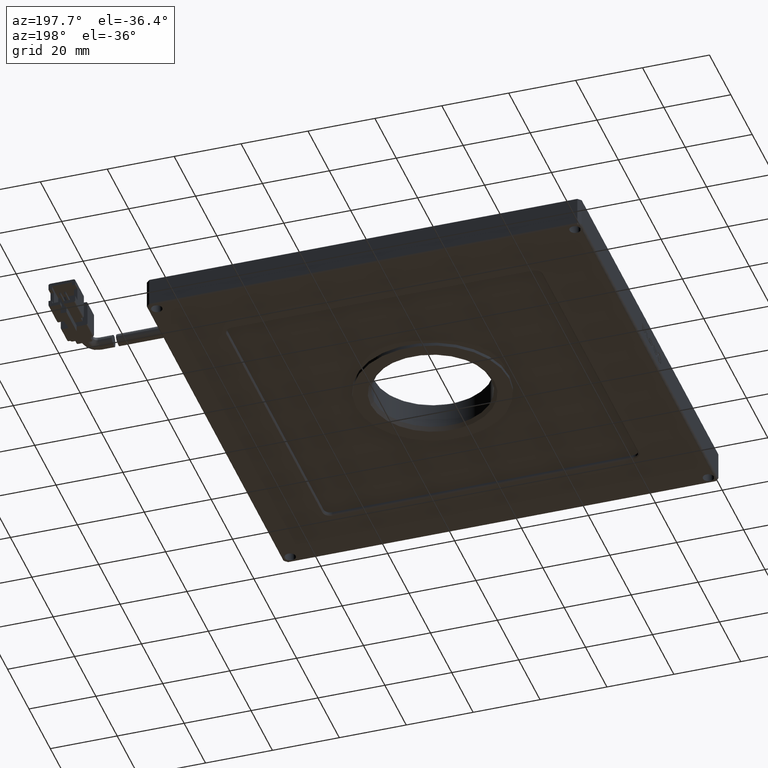
[diagram: clean part render]
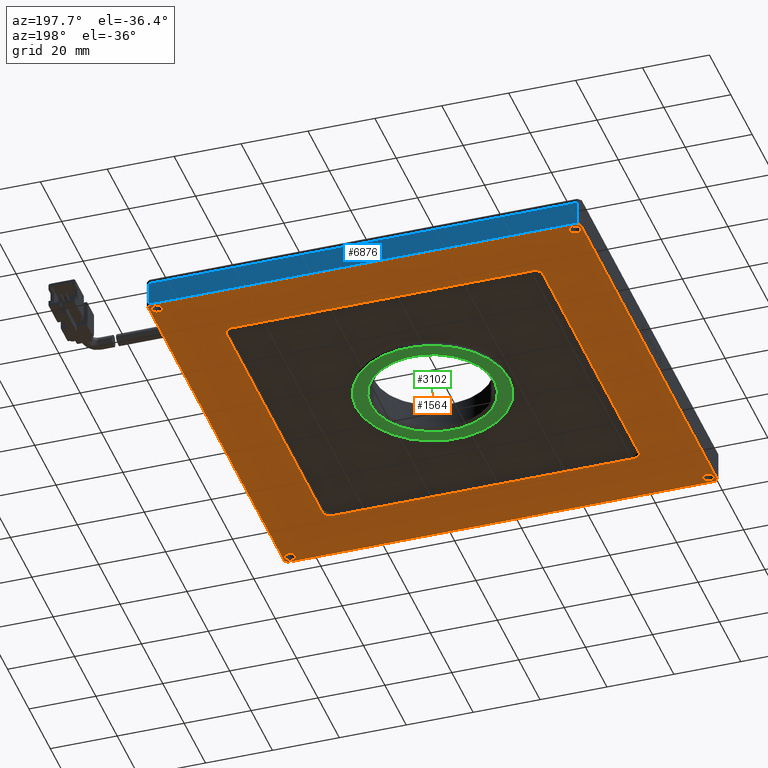
[diagram: same view with three faces highlighted in distinct colors, each labeled with its STEP entity id]
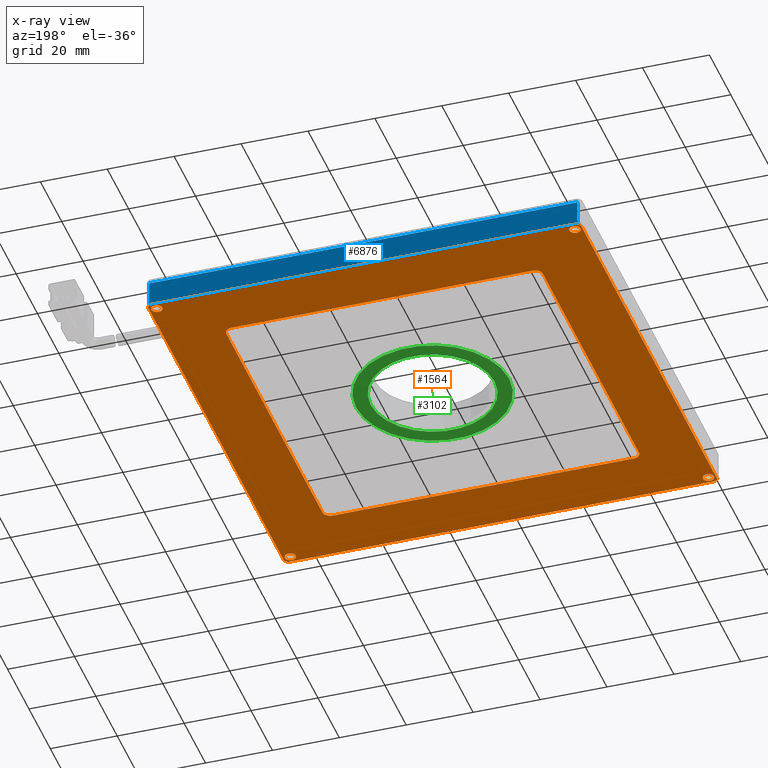
[diagram: x-ray of the same camera — body ghosted, the three highlighted faces saturated]
A machine part, auxiliary view with three faces highlighted in distinct colors.
The next image is the same camera in x-ray (body ghosted, the three faces saturated) — at least one of them is partly hidden behind the body in this view.
Their STEP definitions:

[orange] entity #1564 — the highlighted planar face has unit normal (0, 0, -1).
#2 = PLANE ( 'NONE',  #14974 ) ;
#13 = CARTESIAN_POINT ( 'NONE',  ( -36.37092592592590300, -38.44055555555554800, -3.000000000000000000 ) ) ;
#205 = DIRECTION ( 'NONE',  ( 1.000000000000000000, 0.0000000000000000000, 0.0000000000000000000 ) ) ;
#423 = EDGE_LOOP ( 'NONE', ( #8592, #19498 ) ) ;
#468 = ORIENTED_EDGE ( 'NONE', *, *, #8587, .T. ) ;
#483 = AXIS2_PLACEMENT_3D ( 'NONE', #2818, #15341, #19967 ) ;
#526 = CARTESIAN_POINT ( 'NONE',  ( 90.00481000536216000, -40.64055555555555800, -3.000000000000000000 ) ) ;
#533 = EDGE_CURVE ( 'NONE', #6905, #17299, #10256, .T. ) ;
#681 = EDGE_CURVE ( 'NONE', #16996, #3607, #14164, .T. ) ;
#1139 = DIRECTION ( 'NONE',  ( 1.000000000000000000, 0.0000000000000000000, 0.0000000000000000000 ) ) ;
#1408 = CARTESIAN_POINT ( 'NONE',  ( 71.12907407407415400, -23.24055555556236300, -3.000000000006821200 ) ) ;
#1439 = CARTESIAN_POINT ( 'NONE',  ( 90.00481000536218800, 88.75944444444445500, -3.000000000000000000 ) ) ;
#1516 = LINE ( 'NONE', #8014, #14771 ) ;
#1564 = ADVANCED_FACE ( 'NONE', ( #2989, #6883, #2515, #14510, #20165, #11830 ), #2, .T. ) ;
#1593 = ORIENTED_EDGE ( 'NONE', *, *, #533, .T. ) ;
#1683 = DIRECTION ( 'NONE',  ( -0.7071067811865441300, 0.7071067811865510100, 0.0000000000000000000 ) ) ;
#1829 = CARTESIAN_POINT ( 'NONE',  ( -37.74666185721396500, -40.64055555555555800, -2.999999999999999100 ) ) ;
#1976 = DIRECTION ( 'NONE',  ( -1.000000000000000000, 1.810146235794587100E-014, 0.0000000000000000000 ) ) ;
#2025 = ORIENTED_EDGE ( 'NONE', *, *, #14847, .T. ) ;
#2054 = ORIENTED_EDGE ( 'NONE', *, *, #16542, .T. ) ;
#2185 = DIRECTION ( 'NONE',  ( 1.000000000000000000, 0.0000000000000000000, 0.0000000000000000000 ) ) ;
#2229 = ORIENTED_EDGE ( 'NONE', *, *, #11657, .T. ) ;
#2494 = VECTOR ( 'NONE', #18602, 1000.000000000000000 ) ;
#2515 = FACE_BOUND ( 'NONE', #5671, .T. ) ;
#2650 = VERTEX_POINT ( 'NONE', #5867 ) ;
#2669 = VERTEX_POINT ( 'NONE', #20139 ) ;
#2673 = CIRCLE ( 'NONE', #483, 2.299999999991087000 ) ;
#2798 = DIRECTION ( 'NONE',  ( -0.7071067811865474600, -0.7071067811865474600, 0.0000000000000000000 ) ) ;
#2818 = CARTESIAN_POINT ( 'NONE',  ( 71.12907407407409700, 69.05944444444445200, -3.000000000070485400 ) ) ;
#2841 = CARTESIAN_POINT ( 'NONE',  ( -38.87092592592590300, -23.24055555555554200, -3.000000000000000000 ) ) ;
#2874 = EDGE_LOOP ( 'NONE', ( #5280, #10626, #12496, #8518, #13962, #2054, #14275, #16895 ) ) ;
#2989 = FACE_BOUND ( 'NONE', #10168, .T. ) ;
#3068 = EDGE_CURVE ( 'NONE', #4810, #14523, #7098, .T. ) ;
#3080 = EDGE_LOOP ( 'NONE', ( #4574, #18435 ) ) ;
#3309 = AXIS2_PLACEMENT_3D ( 'NONE', #6726, #9771, #11328 ) ;
#3359 = CIRCLE ( 'NONE', #11646, 2.300000000009273700 ) ;
#3384 = CARTESIAN_POINT ( 'NONE',  ( -38.87092592592590300, 89.05944444444445200, -3.000000000000000000 ) ) ;
#3480 = CIRCLE ( 'NONE', #11926, 1.649999999999984800 ) ;
#3555 = CIRCLE ( 'NONE', #7502, 2.300000000009273700 ) ;
#3607 = VERTEX_POINT ( 'NONE', #18796 ) ;
#3664 = DIRECTION ( 'NONE',  ( 1.000000000000000000, 0.0000000000000000000, 0.0000000000000000000 ) ) ;
#3666 = VERTEX_POINT ( 'NONE', #1829 ) ;
#3941 = DIRECTION ( 'NONE',  ( -0.0000000000000000000, -0.0000000000000000000, 1.000000000000000000 ) ) ;
#4016 = LINE ( 'NONE', #1439, #19737 ) ;
#4089 = DIRECTION ( 'NONE',  ( -0.0000000000000000000, -0.0000000000000000000, 1.000000000000000000 ) ) ;
#4191 = EDGE_CURVE ( 'NONE', #6174, #3666, #11547, .T. ) ;
#4398 = DIRECTION ( 'NONE',  ( -1.000000000000000000, 0.0000000000000000000, -0.0000000000000000000 ) ) ;
#4431 = CARTESIAN_POINT ( 'NONE',  ( 86.97907407407410600, -38.44055555555554800, -3.000000000000000000 ) ) ;
#4512 = CARTESIAN_POINT ( 'NONE',  ( 90.82907407407412800, 87.93518037573254300, -3.000000000000009800 ) ) ;
#4541 = CIRCLE ( 'NONE', #6086, 1.649999999999991700 ) ;
#4574 = ORIENTED_EDGE ( 'NONE', *, *, #13512, .T. ) ;
#4585 = VECTOR ( 'NONE', #17135, 1000.000000000000000 ) ;
#4743 = AXIS2_PLACEMENT_3D ( 'NONE', #12866, #11148, #12926 ) ;
#4762 = DIRECTION ( 'NONE',  ( -0.0000000000000000000, -0.0000000000000000000, 1.000000000000000000 ) ) ;
#4810 = VERTEX_POINT ( 'NONE', #12452 ) ;
#4852 = ORIENTED_EDGE ( 'NONE', *, *, #14820, .T. ) ;
#4872 = VECTOR ( 'NONE', #13671, 1000.000000000000000 ) ;
#4950 = CIRCLE ( 'NONE', #12986, 1.649999999999991700 ) ;
#4996 = EDGE_CURVE ( 'NONE', #20325, #19573, #10507, .T. ) ;
#5055 = EDGE_CURVE ( 'NONE', #5589, #10327, #2673, .T. ) ;
#5069 = DIRECTION ( 'NONE',  ( -1.000000000000000000, 0.0000000000000000000, -0.0000000000000000000 ) ) ;
#5101 = CARTESIAN_POINT ( 'NONE',  ( -36.37092592592590300, 86.55944444444445200, -3.000000000000000000 ) ) ;
#5280 = ORIENTED_EDGE ( 'NONE', *, *, #13446, .T. ) ;
#5362 = DIRECTION ( 'NONE',  ( 1.000000000000000000, 0.0000000000000000000, 0.0000000000000000000 ) ) ;
#5466 = CARTESIAN_POINT ( 'NONE',  ( 90.82907407407412800, -39.81629148684359600, -3.000000000000000000 ) ) ;
#5587 = DIRECTION ( 'NONE',  ( -0.0000000000000000000, -0.0000000000000000000, 1.000000000000000000 ) ) ;
#5589 = VERTEX_POINT ( 'NONE', #8749 ) ;
#5671 = EDGE_LOOP ( 'NONE', ( #17391, #12294 ) ) ;
#5694 = LINE ( 'NONE', #9486, #15732 ) ;
#5709 = CARTESIAN_POINT ( 'NONE',  ( -38.87092592592590300, -40.64055555555555800, -3.000000000000000000 ) ) ;
#5867 = CARTESIAN_POINT ( 'NONE',  ( -18.87092592592590600, -23.24055555555554200, -3.000000000000000000 ) ) ;
#6007 = EDGE_CURVE ( 'NONE', #12285, #19096, #14369, .T. ) ;
#6086 = AXIS2_PLACEMENT_3D ( 'NONE', #18080, #5587, #10268 ) ;
#6126 = EDGE_LOOP ( 'NONE', ( #11059, #468, #18697, #4852, #10243, #2229, #1593, #6721 ) ) ;
#6174 = VERTEX_POINT ( 'NONE', #526 ) ;
#6183 = VERTEX_POINT ( 'NONE', #6793 ) ;
#6471 = DIRECTION ( 'NONE',  ( -0.0000000000000000000, -0.0000000000000000000, 1.000000000000000000 ) ) ;
#6721 = ORIENTED_EDGE ( 'NONE', *, *, #14597, .T. ) ;
#6726 = CARTESIAN_POINT ( 'NONE',  ( 71.12907407407409700, -20.94055555555555200, -3.000000000013642000 ) ) ;
#6793 = CARTESIAN_POINT ( 'NONE',  ( -34.72092592592591100, 86.55944444444445200, -3.000000000000000000 ) ) ;
#6833 = CIRCLE ( 'NONE', #7891, 1.649999999999991700 ) ;
#6855 = LINE ( 'NONE', #11538, #4872 ) ;
#6883 = FACE_BOUND ( 'NONE', #3080, .T. ) ;
#6905 = VERTEX_POINT ( 'NONE', #4512 ) ;
#7098 = CIRCLE ( 'NONE', #4743, 1.649999999999984800 ) ;
#7154 = DIRECTION ( 'NONE',  ( -1.000000000000000000, 0.0000000000000000000, 0.0000000000000000000 ) ) ;
#7241 = VECTOR ( 'NONE', #18852, 1000.000000000000000 ) ;
#7502 = AXIS2_PLACEMENT_3D ( 'NONE', #8671, #4089, #7154 ) ;
#7557 = VERTEX_POINT ( 'NONE', #14012 ) ;
#7576 = DIRECTION ( 'NONE',  ( -0.0000000000000000000, -1.000000000000000000, -0.0000000000000000000 ) ) ;
#7586 = CARTESIAN_POINT ( 'NONE',  ( -38.02092592592589400, -38.44055555555554800, -3.000000000000000000 ) ) ;
#7891 = AXIS2_PLACEMENT_3D ( 'NONE', #13, #4762, #205 ) ;
#7938 = EDGE_CURVE ( 'NONE', #17073, #17852, #6833, .T. ) ;
#8014 = CARTESIAN_POINT ( 'NONE',  ( -38.87092592592590300, 71.35944444444444900, -3.000000000000000000 ) ) ;
#8249 = DIRECTION ( 'NONE',  ( 0.0000000000000000000, 0.0000000000000000000, -1.000000000000000000 ) ) ;
#8518 = ORIENTED_EDGE ( 'NONE', *, *, #12557, .T. ) ;
#8587 = EDGE_CURVE ( 'NONE', #3666, #7557, #17839, .T. ) ;
#8592 = ORIENTED_EDGE ( 'NONE', *, *, #8968, .T. ) ;
#8649 = EDGE_CURVE ( 'NONE', #9091, #15094, #8981, .T. ) ;
#8671 = CARTESIAN_POINT ( 'NONE',  ( -18.87092592592591000, -20.94055555555555200, -3.000000000000000000 ) ) ;
#8717 = CIRCLE ( 'NONE', #14777, 1.649999999999991700 ) ;
#8749 = CARTESIAN_POINT ( 'NONE',  ( 73.42907407406106300, 69.05944444444443800, -3.000000000035242900 ) ) ;
#8935 = CARTESIAN_POINT ( 'NONE',  ( -36.37092592592590300, 86.55944444444445200, -3.000000000000000000 ) ) ;
#8968 = EDGE_CURVE ( 'NONE', #6183, #9951, #8717, .T. ) ;
#8981 = CIRCLE ( 'NONE', #3309, 2.299999999934243500 ) ;
#8990 = AXIS2_PLACEMENT_3D ( 'NONE', #19507, #9904, #3664 ) ;
#9085 = CARTESIAN_POINT ( 'NONE',  ( 90.82907407407410000, -39.81629148684361000, -3.000000000000000000 ) ) ;
#9091 = VERTEX_POINT ( 'NONE', #1408 ) ;
#9484 = CARTESIAN_POINT ( 'NONE',  ( -37.74666185721396500, -40.64055555555555800, -3.000000000000000000 ) ) ;
#9486 = CARTESIAN_POINT ( 'NONE',  ( -38.57092592592590600, 87.93518037573254300, -3.000000000000000000 ) ) ;
#9554 = VERTEX_POINT ( 'NONE', #20034 ) ;
#9771 = DIRECTION ( 'NONE',  ( -0.0000000000000000000, -0.0000000000000000000, 1.000000000000000000 ) ) ;
#9904 = DIRECTION ( 'NONE',  ( -0.0000000000000000000, -0.0000000000000000000, 1.000000000000000000 ) ) ;
#9951 = VERTEX_POINT ( 'NONE', #15131 ) ;
#10168 = EDGE_LOOP ( 'NONE', ( #16822, #2025 ) ) ;
#10243 = ORIENTED_EDGE ( 'NONE', *, *, #681, .T. ) ;
#10256 = LINE ( 'NONE', #11953, #11721 ) ;
#10262 = EDGE_CURVE ( 'NONE', #2669, #20325, #3359, .T. ) ;
#10268 = DIRECTION ( 'NONE',  ( 1.000000000000000000, 0.0000000000000000000, 0.0000000000000000000 ) ) ;
#10326 = CARTESIAN_POINT ( 'NONE',  ( -34.72092592592591100, -38.44055555555554800, -3.000000000000000000 ) ) ;
#10327 = VERTEX_POINT ( 'NONE', #17323 ) ;
#10507 = LINE ( 'NONE', #16989, #10989 ) ;
#10521 = DIRECTION ( 'NONE',  ( -0.0000000000000000000, -0.0000000000000000000, 1.000000000000000000 ) ) ;
#10622 = CARTESIAN_POINT ( 'NONE',  ( -37.74666185721398600, 88.75944444444445500, -2.999999999999998200 ) ) ;
#10626 = ORIENTED_EDGE ( 'NONE', *, *, #15108, .T. ) ;
#10940 = DIRECTION ( 'NONE',  ( 0.7071067811865474600, -0.7071067811865474600, 0.0000000000000000000 ) ) ;
#10989 = VECTOR ( 'NONE', #7576, 1000.000000000000000 ) ;
#11052 = DIRECTION ( 'NONE',  ( 1.000000000000000000, 0.0000000000000000000, 0.0000000000000000000 ) ) ;
#11059 = ORIENTED_EDGE ( 'NONE', *, *, #4191, .T. ) ;
#11148 = DIRECTION ( 'NONE',  ( -0.0000000000000000000, -0.0000000000000000000, 1.000000000000000000 ) ) ;
#11328 = DIRECTION ( 'NONE',  ( -1.000000000000000000, 0.0000000000000000000, 0.0000000000000000000 ) ) ;
#11330 = DIRECTION ( 'NONE',  ( 0.7071067811865472400, 0.7071067811865479100, 0.0000000000000000000 ) ) ;
#11443 = VECTOR ( 'NONE', #1683, 999.9999999999998900 ) ;
#11538 = CARTESIAN_POINT ( 'NONE',  ( 73.42907407407409400, 89.05944444444445200, -3.000000000000000000 ) ) ;
#11547 = LINE ( 'NONE', #5709, #15218 ) ;
#11646 = AXIS2_PLACEMENT_3D ( 'NONE', #12793, #6471, #1976 ) ;
#11657 = EDGE_CURVE ( 'NONE', #3607, #6905, #4016, .T. ) ;
#11721 = VECTOR ( 'NONE', #14888, 1000.000000000000000 ) ;
#11830 = FACE_BOUND ( 'NONE', #2874, .T. ) ;
#11835 = CARTESIAN_POINT ( 'NONE',  ( -21.17092592592590300, 69.05944444444443800, -3.000000000000000000 ) ) ;
#11876 = EDGE_CURVE ( 'NONE', #9951, #6183, #4950, .T. ) ;
#11926 = AXIS2_PLACEMENT_3D ( 'NONE', #18808, #15706, #11052 ) ;
#11953 = CARTESIAN_POINT ( 'NONE',  ( 90.82907407407410000, 89.05944444444445200, -3.000000000000000000 ) ) ;
#12285 = VERTEX_POINT ( 'NONE', #18880 ) ;
#12294 = ORIENTED_EDGE ( 'NONE', *, *, #6007, .T. ) ;
#12452 = CARTESIAN_POINT ( 'NONE',  ( 90.27907407407407400, -38.44055555555554800, -3.000000000000000000 ) ) ;
#12496 = ORIENTED_EDGE ( 'NONE', *, *, #8649, .T. ) ;
#12557 = EDGE_CURVE ( 'NONE', #15094, #5589, #6855, .T. ) ;
#12727 = AXIS2_PLACEMENT_3D ( 'NONE', #13336, #3941, #5362 ) ;
#12793 = CARTESIAN_POINT ( 'NONE',  ( -18.87092592592591000, 69.05944444444445200, -3.000000000000000000 ) ) ;
#12857 = DIRECTION ( 'NONE',  ( -1.000000000000000000, 0.0000000000000000000, -0.0000000000000000000 ) ) ;
#12866 = CARTESIAN_POINT ( 'NONE',  ( 88.62907407407409700, -38.44055555555554800, -3.000000000000000000 ) ) ;
#12926 = DIRECTION ( 'NONE',  ( 1.000000000000000000, 0.0000000000000000000, 0.0000000000000000000 ) ) ;
#12986 = AXIS2_PLACEMENT_3D ( 'NONE', #5101, #19244, #2185 ) ;
#13298 = CIRCLE ( 'NONE', #8990, 1.649999999999984800 ) ;
#13336 = CARTESIAN_POINT ( 'NONE',  ( 88.62907407407409700, 86.55944444444445200, -3.000000000000000000 ) ) ;
#13446 = EDGE_CURVE ( 'NONE', #19573, #2650, #3555, .T. ) ;
#13512 = EDGE_CURVE ( 'NONE', #17852, #17073, #4541, .T. ) ;
#13671 = DIRECTION ( 'NONE',  ( 0.0000000000000000000, 1.000000000000000000, 0.0000000000000000000 ) ) ;
#13962 = ORIENTED_EDGE ( 'NONE', *, *, #5055, .T. ) ;
#14006 = LINE ( 'NONE', #2841, #2494 ) ;
#14012 = CARTESIAN_POINT ( 'NONE',  ( -38.57092592592589900, -39.81629148684362500, -2.999999999999999100 ) ) ;
#14164 = LINE ( 'NONE', #18382, #4585 ) ;
#14275 = ORIENTED_EDGE ( 'NONE', *, *, #10262, .T. ) ;
#14369 = CIRCLE ( 'NONE', #12727, 1.649999999999984800 ) ;
#14510 = FACE_BOUND ( 'NONE', #423, .T. ) ;
#14523 = VERTEX_POINT ( 'NONE', #4431 ) ;
#14597 = EDGE_CURVE ( 'NONE', #17299, #6174, #20178, .T. ) ;
#14771 = VECTOR ( 'NONE', #5069, 1000.000000000000000 ) ;
#14777 = AXIS2_PLACEMENT_3D ( 'NONE', #8935, #10521, #1139 ) ;
#14820 = EDGE_CURVE ( 'NONE', #9554, #16996, #5694, .T. ) ;
#14847 = EDGE_CURVE ( 'NONE', #14523, #4810, #13298, .T. ) ;
#14888 = DIRECTION ( 'NONE',  ( -0.0000000000000000000, -1.000000000000000000, -0.0000000000000000000 ) ) ;
#14974 = AXIS2_PLACEMENT_3D ( 'NONE', #3384, #8249, #12857 ) ;
#15094 = VERTEX_POINT ( 'NONE', #16626 ) ;
#15108 = EDGE_CURVE ( 'NONE', #2650, #9091, #14006, .T. ) ;
#15110 = LINE ( 'NONE', #18920, #7241 ) ;
#15131 = CARTESIAN_POINT ( 'NONE',  ( -38.02092592592589400, 86.55944444444445200, -3.000000000000000000 ) ) ;
#15218 = VECTOR ( 'NONE', #4398, 1000.000000000000000 ) ;
#15266 = VECTOR ( 'NONE', #2798, 1000.000000000000100 ) ;
#15341 = DIRECTION ( 'NONE',  ( -0.0000000000000000000, -0.0000000000000000000, 1.000000000000000000 ) ) ;
#15706 = DIRECTION ( 'NONE',  ( -0.0000000000000000000, -0.0000000000000000000, 1.000000000000000000 ) ) ;
#15732 = VECTOR ( 'NONE', #11330, 1000.000000000000000 ) ;
#16387 = EDGE_CURVE ( 'NONE', #19096, #12285, #3480, .T. ) ;
#16542 = EDGE_CURVE ( 'NONE', #10327, #2669, #1516, .T. ) ;
#16612 = CARTESIAN_POINT ( 'NONE',  ( 90.27907407407407400, 86.55944444444445200, -3.000000000000000000 ) ) ;
#16626 = CARTESIAN_POINT ( 'NONE',  ( 73.42907407408090100, -20.94055555555561600, -3.000000000006821200 ) ) ;
#16822 = ORIENTED_EDGE ( 'NONE', *, *, #3068, .T. ) ;
#16895 = ORIENTED_EDGE ( 'NONE', *, *, #4996, .T. ) ;
#16989 = CARTESIAN_POINT ( 'NONE',  ( -21.17092592592590300, 89.05944444444445200, -3.000000000000000000 ) ) ;
#16996 = VERTEX_POINT ( 'NONE', #10622 ) ;
#17073 = VERTEX_POINT ( 'NONE', #7586 ) ;
#17135 = DIRECTION ( 'NONE',  ( 1.000000000000000000, -0.0000000000000000000, 0.0000000000000000000 ) ) ;
#17299 = VERTEX_POINT ( 'NONE', #5466 ) ;
#17323 = CARTESIAN_POINT ( 'NONE',  ( 71.12907407407415400, 71.35944444447967800, -3.000000000035242900 ) ) ;
#17391 = ORIENTED_EDGE ( 'NONE', *, *, #16387, .T. ) ;
#17762 = CARTESIAN_POINT ( 'NONE',  ( -21.17092592592376800, -20.94055555555555200, -3.000000000000000000 ) ) ;
#17839 = LINE ( 'NONE', #9484, #11443 ) ;
#17852 = VERTEX_POINT ( 'NONE', #10326 ) ;
#18080 = CARTESIAN_POINT ( 'NONE',  ( -36.37092592592590300, -38.44055555555554800, -3.000000000000000000 ) ) ;
#18382 = CARTESIAN_POINT ( 'NONE',  ( -38.87092592592590300, 88.75944444444445500, -3.000000000000000000 ) ) ;
#18435 = ORIENTED_EDGE ( 'NONE', *, *, #7938, .T. ) ;
#18602 = DIRECTION ( 'NONE',  ( 1.000000000000000000, -0.0000000000000000000, 0.0000000000000000000 ) ) ;
#18697 = ORIENTED_EDGE ( 'NONE', *, *, #19427, .T. ) ;
#18796 = CARTESIAN_POINT ( 'NONE',  ( 90.00481000536218800, 88.75944444444445500, -3.000000000000005300 ) ) ;
#18808 = CARTESIAN_POINT ( 'NONE',  ( 88.62907407407409700, 86.55944444444445200, -3.000000000000000000 ) ) ;
#18852 = DIRECTION ( 'NONE',  ( 0.0000000000000000000, 1.000000000000000000, 0.0000000000000000000 ) ) ;
#18880 = CARTESIAN_POINT ( 'NONE',  ( 86.97907407407410600, 86.55944444444445200, -3.000000000000000000 ) ) ;
#18920 = CARTESIAN_POINT ( 'NONE',  ( -38.57092592592590600, 89.05944444444445200, -3.000000000000000000 ) ) ;
#19096 = VERTEX_POINT ( 'NONE', #16612 ) ;
#19244 = DIRECTION ( 'NONE',  ( -0.0000000000000000000, -0.0000000000000000000, 1.000000000000000000 ) ) ;
#19427 = EDGE_CURVE ( 'NONE', #7557, #9554, #15110, .T. ) ;
#19498 = ORIENTED_EDGE ( 'NONE', *, *, #11876, .T. ) ;
#19507 = CARTESIAN_POINT ( 'NONE',  ( 88.62907407407409700, -38.44055555555554800, -3.000000000000000000 ) ) ;
#19573 = VERTEX_POINT ( 'NONE', #17762 ) ;
#19737 = VECTOR ( 'NONE', #10940, 1000.000000000000100 ) ;
#19967 = DIRECTION ( 'NONE',  ( -1.000000000000000000, 0.0000000000000000000, 0.0000000000000000000 ) ) ;
#20034 = CARTESIAN_POINT ( 'NONE',  ( -38.57092592592590600, 87.93518037573260000, -2.999999999999996900 ) ) ;
#20139 = CARTESIAN_POINT ( 'NONE',  ( -18.87092592592592100, 71.35944444444118100, -3.000000000000000000 ) ) ;
#20165 = FACE_OUTER_BOUND ( 'NONE', #6126, .T. ) ;
#20178 = LINE ( 'NONE', #9085, #15266 ) ;
#20325 = VERTEX_POINT ( 'NONE', #11835 ) ;

[blue] entity #6876 — the highlighted planar face has unit normal (0, -1, 0).
#329 = ORIENTED_EDGE ( 'NONE', *, *, #8943, .F. ) ;
#821 = LINE ( 'NONE', #13230, #10842 ) ;
#1311 = EDGE_CURVE ( 'NONE', #2940, #16337, #821, .T. ) ;
#2382 = DIRECTION ( 'NONE',  ( 1.000000000000000000, -0.0000000000000000000, 0.0000000000000000000 ) ) ;
#2528 = DIRECTION ( 'NONE',  ( 1.000000000000000000, -0.0000000000000000000, 0.0000000000000000000 ) ) ;
#2846 = LINE ( 'NONE', #18338, #9957 ) ;
#2940 = VERTEX_POINT ( 'NONE', #12705 ) ;
#4570 = ORIENTED_EDGE ( 'NONE', *, *, #1311, .F. ) ;
#5666 = CARTESIAN_POINT ( 'NONE',  ( -37.87092592592593100, 89.05944444444445200, -2.699999999999980200 ) ) ;
#6876 = ADVANCED_FACE ( 'NONE', ( #14043 ), #7436, .F. ) ;
#6971 = CARTESIAN_POINT ( 'NONE',  ( 90.12907407407412600, 89.05944444444445200, 4.500000000000000000 ) ) ;
#7436 = PLANE ( 'NONE',  #12487 ) ;
#8196 = EDGE_LOOP ( 'NONE', ( #329, #4570, #10191, #12771 ) ) ;
#8943 = EDGE_CURVE ( 'NONE', #16337, #16532, #2846, .T. ) ;
#9957 = VECTOR ( 'NONE', #2528, 1000.000000000000000 ) ;
#10064 = EDGE_CURVE ( 'NONE', #16532, #12997, #13041, .T. ) ;
#10183 = CARTESIAN_POINT ( 'NONE',  ( -38.87092592592590300, 89.05944444444445200, 4.500000000000000000 ) ) ;
#10191 = ORIENTED_EDGE ( 'NONE', *, *, #15047, .T. ) ;
#10572 = VECTOR ( 'NONE', #2382, 1000.000000000000000 ) ;
#10615 = CARTESIAN_POINT ( 'NONE',  ( -38.87092592592590300, 89.05944444444445200, 4.500000000000000000 ) ) ;
#10842 = VECTOR ( 'NONE', #19534, 1000.000000000000000 ) ;
#11062 = VECTOR ( 'NONE', #12186, 1000.000000000000000 ) ;
#11794 = CARTESIAN_POINT ( 'NONE',  ( 90.12907407407412600, 89.05944444444445200, 4.500000000000000000 ) ) ;
#12186 = DIRECTION ( 'NONE',  ( -0.0000000000000000000, 0.0000000000000000000, 1.000000000000000000 ) ) ;
#12487 = AXIS2_PLACEMENT_3D ( 'NONE', #10615, #15145, #13662 ) ;
#12705 = CARTESIAN_POINT ( 'NONE',  ( -37.87092592592593100, 89.05944444444445200, 4.500000000000000000 ) ) ;
#12771 = ORIENTED_EDGE ( 'NONE', *, *, #10064, .F. ) ;
#12997 = VERTEX_POINT ( 'NONE', #11794 ) ;
#13041 = LINE ( 'NONE', #6971, #11062 ) ;
#13230 = CARTESIAN_POINT ( 'NONE',  ( -37.87092592592593100, 89.05944444444445200, 4.500000000000000000 ) ) ;
#13662 = DIRECTION ( 'NONE',  ( 0.0000000000000000000, -0.0000000000000000000, -1.000000000000000000 ) ) ;
#14043 = FACE_OUTER_BOUND ( 'NONE', #8196, .T. ) ;
#14415 = CARTESIAN_POINT ( 'NONE',  ( 90.12907407407409700, 89.05944444444445200, -2.699999999999981500 ) ) ;
#15047 = EDGE_CURVE ( 'NONE', #2940, #12997, #15710, .T. ) ;
#15145 = DIRECTION ( 'NONE',  ( 0.0000000000000000000, -1.000000000000000000, 0.0000000000000000000 ) ) ;
#15710 = LINE ( 'NONE', #10183, #10572 ) ;
#16337 = VERTEX_POINT ( 'NONE', #5666 ) ;
#16532 = VERTEX_POINT ( 'NONE', #14415 ) ;
#18338 = CARTESIAN_POINT ( 'NONE',  ( -38.87092592592590300, 89.05944444444445200, -2.699999999999977500 ) ) ;
#19534 = DIRECTION ( 'NONE',  ( 0.0000000000000000000, -0.0000000000000000000, -1.000000000000000000 ) ) ;

[green] entity #3102 — the highlighted planar face has unit normal (-0, 0, 1).
#156 = DIRECTION ( 'NONE',  ( -1.000000000000000000, -1.875376730785733800E-016, 0.0000000000000000000 ) ) ;
#228 = DIRECTION ( 'NONE',  ( -0.0000000000000000000, -0.0000000000000000000, 1.000000000000000000 ) ) ;
#1298 = ORIENTED_EDGE ( 'NONE', *, *, #4389, .F. ) ;
#1832 = CIRCLE ( 'NONE', #11333, 22.90000000000000900 ) ;
#2421 = AXIS2_PLACEMENT_3D ( 'NONE', #3224, #4911, #15966 ) ;
#3102 = ADVANCED_FACE ( 'NONE', ( #20125, #17418 ), #9600, .F. ) ;
#3224 = CARTESIAN_POINT ( 'NONE',  ( 26.12907407407411900, 41.55944444444445200, -3.000000000000004400 ) ) ;
#3459 = AXIS2_PLACEMENT_3D ( 'NONE', #12675, #9666, #156 ) ;
#3733 = EDGE_CURVE ( 'NONE', #10811, #10479, #18352, .T. ) ;
#4232 = CARTESIAN_POINT ( 'NONE',  ( 3.229074074074109700, 24.05944444444444100, -3.000000000000002700 ) ) ;
#4389 = EDGE_CURVE ( 'NONE', #11077, #16654, #10786, .T. ) ;
#4911 = DIRECTION ( 'NONE',  ( -0.0000000000000000000, 0.0000000000000000000, 1.000000000000000000 ) ) ;
#5911 = AXIS2_PLACEMENT_3D ( 'NONE', #6660, #15914, #19647 ) ;
#6437 = ORIENTED_EDGE ( 'NONE', *, *, #13658, .F. ) ;
#6660 = CARTESIAN_POINT ( 'NONE',  ( 26.12907407407412200, 24.05944444444444500, -3.000000000000006200 ) ) ;
#7725 = ORIENTED_EDGE ( 'NONE', *, *, #3733, .F. ) ;
#7749 = CARTESIAN_POINT ( 'NONE',  ( 49.02907407407412400, 24.05944444444445200, -3.000000000000002700 ) ) ;
#9579 = CIRCLE ( 'NONE', #5911, 18.50000000000003600 ) ;
#9600 = PLANE ( 'NONE',  #2421 ) ;
#9666 = DIRECTION ( 'NONE',  ( 0.0000000000000000000, 0.0000000000000000000, -1.000000000000000000 ) ) ;
#10181 = AXIS2_PLACEMENT_3D ( 'NONE', #17234, #18807, #15506 ) ;
#10479 = VERTEX_POINT ( 'NONE', #4232 ) ;
#10786 = CIRCLE ( 'NONE', #3459, 18.50000000000003600 ) ;
#10811 = VERTEX_POINT ( 'NONE', #7749 ) ;
#11077 = VERTEX_POINT ( 'NONE', #12085 ) ;
#11333 = AXIS2_PLACEMENT_3D ( 'NONE', #14137, #228, #15897 ) ;
#11532 = CARTESIAN_POINT ( 'NONE',  ( 7.629074074074086600, 24.05944444444444100, -3.000000000000006200 ) ) ;
#12085 = CARTESIAN_POINT ( 'NONE',  ( 44.62907407407415400, 24.05944444444444800, -3.000000000000006200 ) ) ;
#12435 = EDGE_CURVE ( 'NONE', #16654, #11077, #9579, .T. ) ;
#12675 = CARTESIAN_POINT ( 'NONE',  ( 26.12907407407412200, 24.05944444444444500, -3.000000000000006200 ) ) ;
#13658 = EDGE_CURVE ( 'NONE', #10479, #10811, #1832, .T. ) ;
#14137 = CARTESIAN_POINT ( 'NONE',  ( 26.12907407407412200, 24.05944444444444500, -3.000000000000002700 ) ) ;
#15506 = DIRECTION ( 'NONE',  ( -1.000000000000000000, -1.515042337097647400E-016, 0.0000000000000000000 ) ) ;
#15897 = DIRECTION ( 'NONE',  ( -1.000000000000000000, -1.515042337097647400E-016, 0.0000000000000000000 ) ) ;
#15914 = DIRECTION ( 'NONE',  ( 0.0000000000000000000, 0.0000000000000000000, -1.000000000000000000 ) ) ;
#15966 = DIRECTION ( 'NONE',  ( 1.000000000000000000, 1.110223024625156300E-016, 0.0000000000000000000 ) ) ;
#16360 = EDGE_LOOP ( 'NONE', ( #6437, #7725 ) ) ;
#16654 = VERTEX_POINT ( 'NONE', #11532 ) ;
#17234 = CARTESIAN_POINT ( 'NONE',  ( 26.12907407407412200, 24.05944444444444500, -3.000000000000002700 ) ) ;
#17418 = FACE_BOUND ( 'NONE', #19255, .T. ) ;
#18352 = CIRCLE ( 'NONE', #10181, 22.90000000000000900 ) ;
#18807 = DIRECTION ( 'NONE',  ( -0.0000000000000000000, -0.0000000000000000000, 1.000000000000000000 ) ) ;
#19255 = EDGE_LOOP ( 'NONE', ( #19719, #1298 ) ) ;
#19647 = DIRECTION ( 'NONE',  ( -1.000000000000000000, -1.875376730785733800E-016, 0.0000000000000000000 ) ) ;
#19719 = ORIENTED_EDGE ( 'NONE', *, *, #12435, .F. ) ;
#20125 = FACE_OUTER_BOUND ( 'NONE', #16360, .T. ) ;